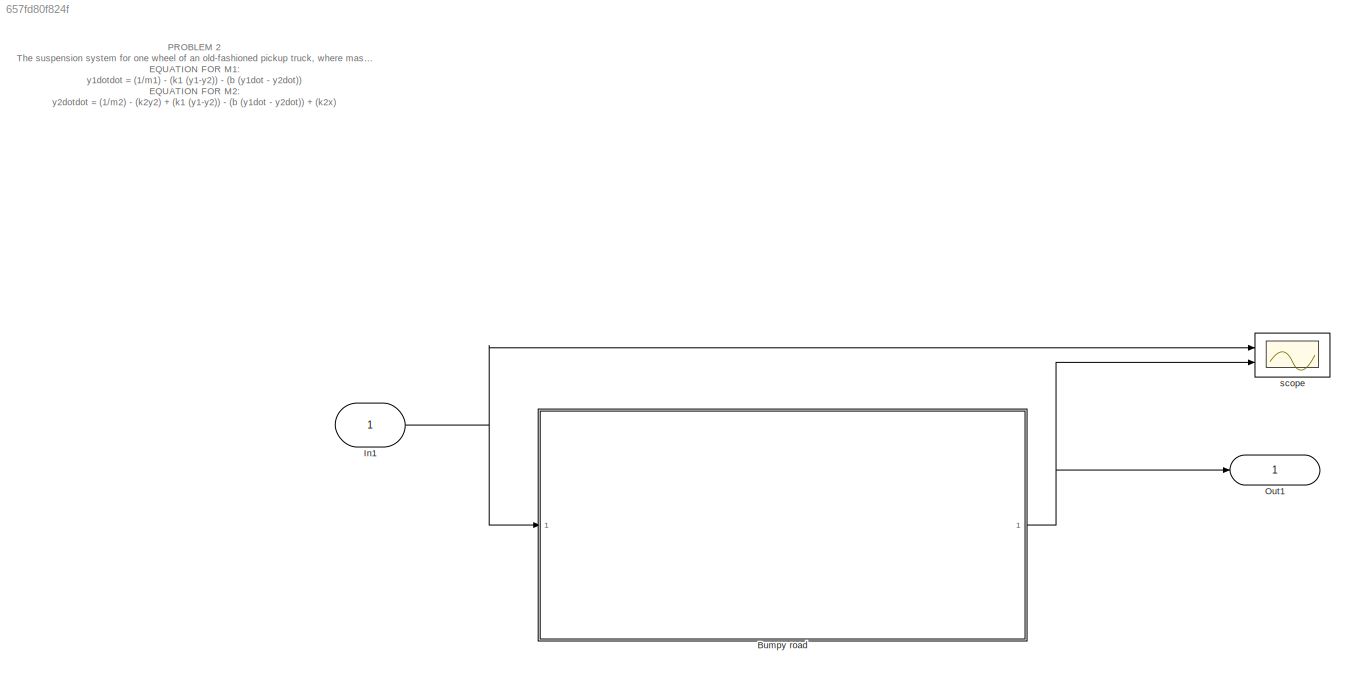
MODEL slx_657fd80f824f
KIND model
CONFIG AbsTol = auto
CONFIG EnableMultiTasking = off
CONFIG FixedStep = auto
CONFIG MaxStep = auto
CONFIG MinStep = auto
CONFIG PreLoadFcn = t = [0:0.01:10]';\nTs = 0.01;\nstin = [zeros(floor((length(t)/2)+1),1) ; 5*ones(floor(length(t)/2),1)];\n%t=t';\n%stin=stin';
CONFIG RelTol = 1e-3
CONFIG SampleTimeConstraint = Unconstrained
CONFIG SolverName = VariableStepAuto
CONFIG StartTime = 0.0
CONFIG StopTime = 100
WORKSPACE source: mxarray member
WORKSPACE b = 100
WORKSPACE k1 = 2000
WORKSPACE k2 = 2000
WORKSPACE m1 = 200
WORKSPACE m2 = 5
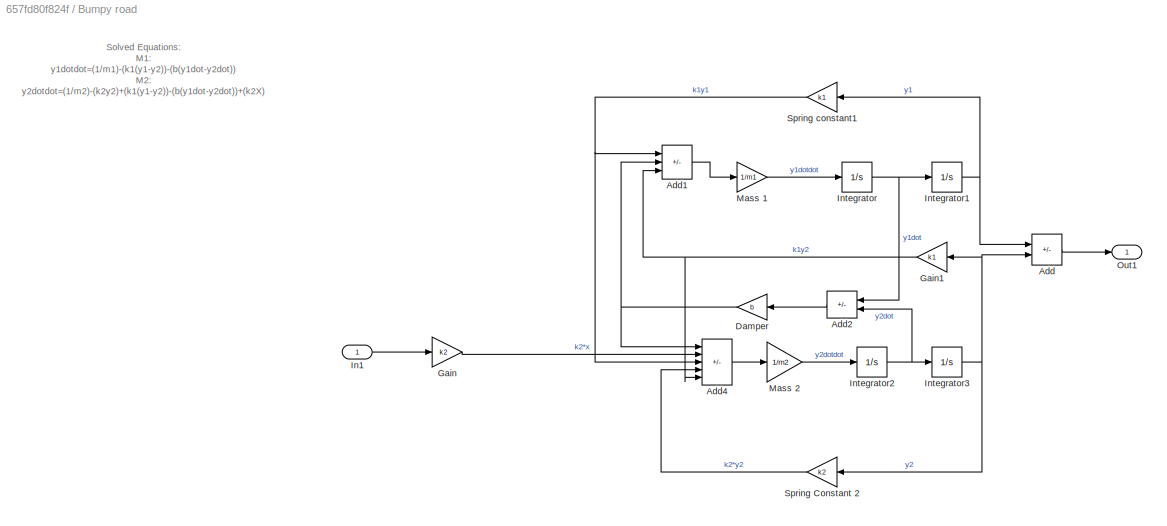
BLOCK [SubSystem]  Bumpy road
  Ports = [1, 1]
  RequestExecContextInheritance = off
BLOCK [Gain]  Bumpy road/ Damper
  Gain = b
BLOCK [Sum]  Bumpy road/Add
  IconShape = rectangular
  Inputs = +-
  Ports = [2, 1]
BLOCK [Sum]  Bumpy road/Add1
  IconShape = rectangular
  Inputs = --+
  Ports = [3, 1]
BLOCK [Sum]  Bumpy road/Add2
  IconShape = rectangular
  Inputs = +-
  Ports = [2, 1]
BLOCK [Sum]  Bumpy road/Add4
  IconShape = rectangular
  Inputs = +++--
  Ports = [5, 1]
BLOCK [Gain]  Bumpy road/Gain
  Gain = k2
BLOCK [Gain]  Bumpy road/Gain1
  Gain = k1
BLOCK [Inport]  Bumpy road/In1
BLOCK [Integrator]  Bumpy road/Integrator
  Ports = [1, 1]
BLOCK [Integrator]  Bumpy road/Integrator1
  Ports = [1, 1]
BLOCK [Integrator]  Bumpy road/Integrator2
  Ports = [1, 1]
BLOCK [Integrator]  Bumpy road/Integrator3
  Ports = [1, 1]
BLOCK [Gain]  Bumpy road/Mass 1
  Gain = 1/m1
BLOCK [Gain]  Bumpy road/Mass 2
  Gain = 1/m2
BLOCK [Outport]  Bumpy road/Out1
BLOCK [Gain]  Bumpy road/Spring Constant 2
  Gain = k2
BLOCK [Gain]  Bumpy road/Spring constant1
  Gain = k1
BLOCK [Inport] In1
BLOCK [Outport] Out1
BLOCK [Scope] scope
  Floating = off
  NumInputPorts = 2
  Ports = [2]
  ScopeSpecificationString = Simulink.scopes.TimeScopeBlockCfg('CurrentConfiguration', extmgr.ConfigurationSet(extmgr.Configuration('Core','General UI',true,'FigureColor',[0 0 0]),extmgr.Configuration('Core','Source UI',true),extmgr.Configuration('Sources','WiredSimulink',true),extmgr.Configuration('Visuals','Time Domain',true,'SerializedDisplays',{struct('MinYLimReal','-0.625','MaxYLimReal','5.625','YLabelReal','','MinYLimMa...<+1922ch>
ANNOTATION (root): PROBLEM 2 The suspension system for one wheel of an old-fashioned pickup truck, where mass of the vehicle is m1 and the mass of the wheel is m2. The suspension spring has a spring constant k1 and the tire had the spring constant k2. The damping constant of the shock absorber is b. The mathematical model represent the vehicle response to bump in the road and for 100 sec. A dummy input signal is use...<+191ch>
ANNOTATION  Bumpy road: Solved Equations: M1: y1dotdot=(1/m1)-(k1(y1-y2))-(b(y1dot-y2dot)) M2: y2dotdot=(1/m2)-(k2y2)+(k1(y1-y2))-(b(y1dot-y2dot))+(k2X )
NET  Bumpy road/ Damper:1 ->  Bumpy road/Add1:2,  Bumpy road/Add4:1
LINE  Bumpy road/Add1:1 ->  Bumpy road/Mass 1:1
LINE  Bumpy road/Add2:1 ->  Bumpy road/ Damper:1
LINE  Bumpy road/Add4:1 ->  Bumpy road/Mass 2:1
LINE  Bumpy road/Add:1 ->  Bumpy road/Out1:1
NET  Bumpy road/Gain1:1 ->  Bumpy road/Add1:3,  Bumpy road/Add4:5
LINE  Bumpy road/Gain:1 ->  Bumpy road/Add4:2
LINE  Bumpy road/In1:1 ->  Bumpy road/Gain:1
NET  Bumpy road/Integrator1:1 ->  Bumpy road/Add:1,  Bumpy road/Spring constant1:1
NET  Bumpy road/Integrator2:1 ->  Bumpy road/Add2:2,  Bumpy road/Integrator3:1
NET  Bumpy road/Integrator3:1 ->  Bumpy road/Add:2,  Bumpy road/Gain1:1,  Bumpy road/Spring Constant 2:1
NET  Bumpy road/Integrator:1 ->  Bumpy road/Add2:1,  Bumpy road/Integrator1:1
LINE  Bumpy road/Mass 1:1 ->  Bumpy road/Integrator:1
LINE  Bumpy road/Mass 2:1 ->  Bumpy road/Integrator2:1
LINE  Bumpy road/Spring Constant 2:1 ->  Bumpy road/Add4:4
NET  Bumpy road/Spring constant1:1 ->  Bumpy road/Add1:1,  Bumpy road/Add4:3
NET  Bumpy road:1 -> Out1:1, scope:2
NET In1:1 ->  Bumpy road:1, scope:1
note: NET lines group one-source signal fan-out (src -> all destinations, sorted); 1:1 wires keep LINE
